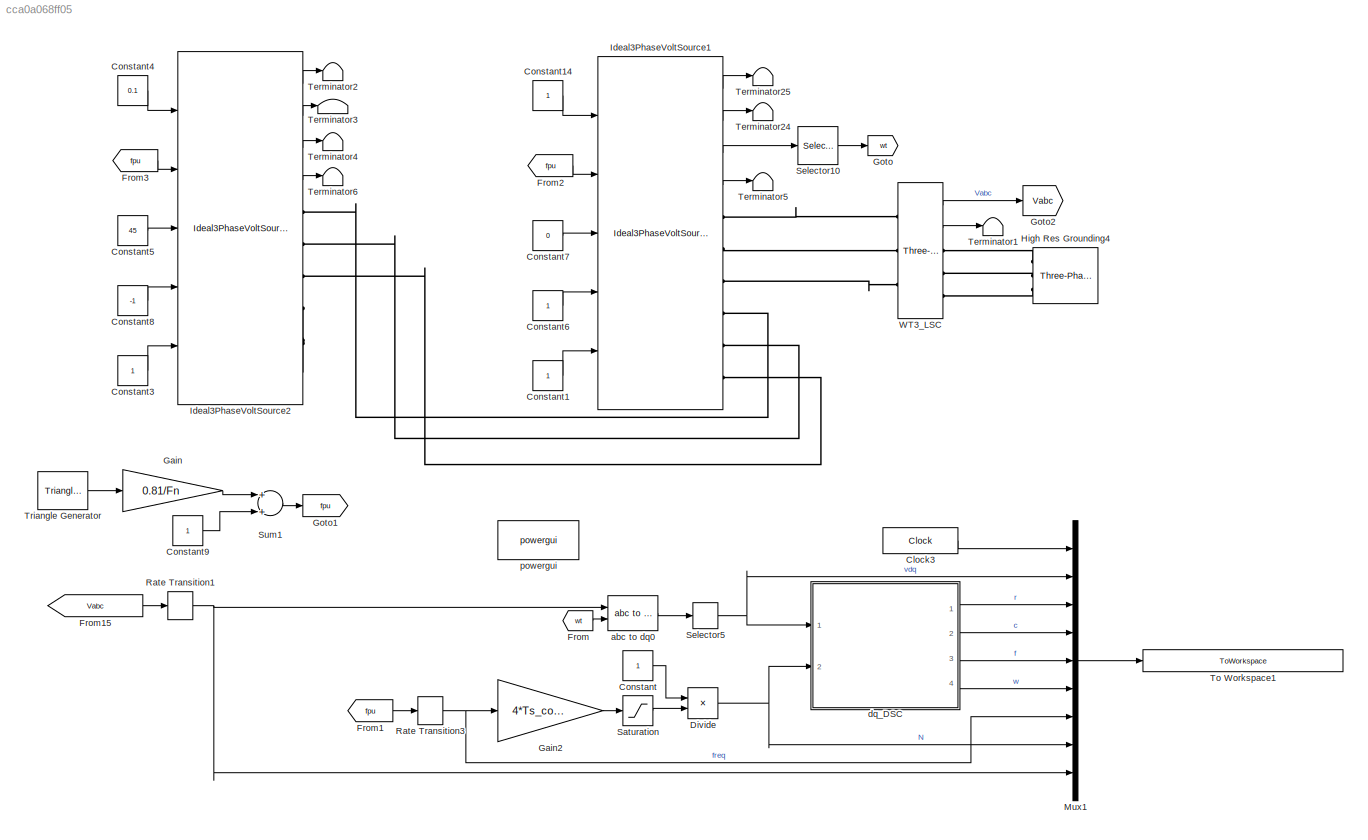
MODEL slx_cca0a068ff05
KIND model
CONFIG AbsTol = auto
CONFIG EnableMultiTasking = off
CONFIG FixedStep = Ts
CONFIG MaxStep = auto
CONFIG MinStep = auto
CONFIG RelTol = 1e-3
CONFIG SampleTimeConstraint = Unconstrained
CONFIG Solver = ode8
CONFIG SolverName = ode8
CONFIG StartTime = 0.0
CONFIG StopTime = Ttot
BLOCK [Clock] Clock3
  Decimation = 1
  DisplayTime = on
BLOCK [Constant] Constant
BLOCK [Constant] Constant1
BLOCK [Constant] Constant14
BLOCK [Constant] Constant3
BLOCK [Constant] Constant4
  Value = 0.1
BLOCK [Constant] Constant5
  Value = 45
BLOCK [Constant] Constant6
BLOCK [Constant] Constant7
  Value = 0
BLOCK [Constant] Constant8
  Value = -1
BLOCK [Constant] Constant9
BLOCK [Product] Divide
  InputSameDT = off
  Inputs = */
  OutDataTypeStr = Inherit: Inherit via internal rule
  Ports = [2, 1]
  RndMeth = Floor
  SaturateOnIntegerOverflow = off
BLOCK [From] From
  GotoTag = wt
BLOCK [From] From1
  GotoTag = fpu
BLOCK [From] From15
  GotoTag = Vabc
BLOCK [From] From2
  GotoTag = fpu
BLOCK [From] From3
  GotoTag = fpu
BLOCK [Gain] Gain
  Gain = 0.81/Fn
  OutDataTypeStr = Inherit: Inherit via internal rule
  ParamDataTypeStr = Inherit: Inherit via internal rule
  SaturateOnIntegerOverflow = off
BLOCK [Gain] Gain2
  Gain = 4*Ts_control*Fn
  OutDataTypeStr = Inherit: Inherit via internal rule
  ParamDataTypeStr = Inherit: Inherit via internal rule
  SaturateOnIntegerOverflow = off
BLOCK [Goto] Goto
  GotoTag = wt
BLOCK [Goto] Goto1
  GotoTag = fpu
BLOCK [Goto] Goto2
  GotoTag = Vabc
BLOCK [Reference] High Res Grounding4  REF=powerlib/Elements/Three-Phase
Parallel RLC Load
  AttributesFormatString = \n
  Ports = [0, 0, 0, 0, 0, 3]
  SourceBlock = powerlib/Elements/Three-Phase\nParallel RLC Load
  SourceProductBaseCode = PS
  SourceProductName = Simscape Power Systems
  SourceType = Three-Phase Parallel RLC Load
BLOCK [Reference] Ideal3PhaseVoltSource1  REF=DSCdq_Library/Ideal3PhaseVoltSource
  Ports = [5, 4, 0, 0, 0, 0, 6]
  SourceBlock = DSCdq_Library/Ideal3PhaseVoltSource
  SourceType = Three-phase ideal voltage source
BLOCK [Reference] Ideal3PhaseVoltSource2  REF=DSCdq_Library/Ideal3PhaseVoltSource
  Ports = [5, 4, 0, 0, 0, 0, 6]
  SourceBlock = DSCdq_Library/Ideal3PhaseVoltSource
  SourceType = Three-phase ideal voltage source
BLOCK [Mux] Mux1
  DisplayOption = bar
  Inputs = 9
  Ports = [9, 1]
BLOCK [RateTransition] Rate Transition1
  OutPortSampleTime = Ts_control
BLOCK [RateTransition] Rate Transition3
  InitialCondition = 1
  OutPortSampleTime = Ts_control
BLOCK [Saturate] Saturation
  InputPortMap = u0
  LowerLimit = 0.000001
  Ports = [1, 1]
  UpperLimit = inf
BLOCK [Selector] Selector10
  IndexOptions = Index vector (dialog)
  Indices = [1]
  InputPortWidth = 3
  OutputSizes = 1
  Ports = [1, 1]
BLOCK [Selector] Selector5
  IndexOptions = Index vector (dialog)
  Indices = [1 2]
  InputPortWidth = 3
  OutputSizes = 1
  Ports = [1, 1]
BLOCK [Sum] Sum1
  InputSameDT = off
  OutDataTypeStr = Inherit: Inherit via internal rule
  Ports = [2, 1]
  SaturateOnIntegerOverflow = off
BLOCK [Terminator] Terminator1
BLOCK [Terminator] Terminator2
BLOCK [Terminator] Terminator24
BLOCK [Terminator] Terminator25
BLOCK [Terminator] Terminator3
BLOCK [Terminator] Terminator4
BLOCK [Terminator] Terminator5
BLOCK [Terminator] Terminator6
BLOCK [ToWorkspace] To Workspace1
  FixptAsFi = on
  MaxDataPoints = inf
  Ports = [1]
  SampleTime = Ts_control
  Save2DSignal = 2-D array (concatenate along first dimension)
  VariableName = FreqAdaptive_Raw
BLOCK [Reference] Triangle Generator  REF=powerlib_meascontrol/Pulse & Signal
Generators/Triangle
Generator
  Ports = [0, 1]
  SourceBlock = powerlib_meascontrol/Pulse & Signal\nGenerators/Triangle\nGenerator
  SourceProductBaseCode = PS
  SourceProductName = Simscape Power Systems
  SourceType = Triangle Generator
BLOCK [Reference] WT3_LSC  REF=powerlib/Measurements/Three-Phase
V-I Measurement
  Ports = [0, 2, 0, 0, 0, 3, 3]
  SourceBlock = powerlib/Measurements/Three-Phase\nV-I Measurement
  SourceProductBaseCode = PS
  SourceProductName = Simscape Power Systems
  SourceType = Three-Phase VI Measurement
BLOCK [Reference] abc to dq0  REF=powerlib_meascontrol/Transformations/abc to dq0
  Ports = [2, 1]
  SourceBlock = powerlib_meascontrol/Transformations/abc to dq0
  SourceProductBaseCode = PS
  SourceProductName = Simscape Power Systems
  SourceType = abc to dq0 Transformation
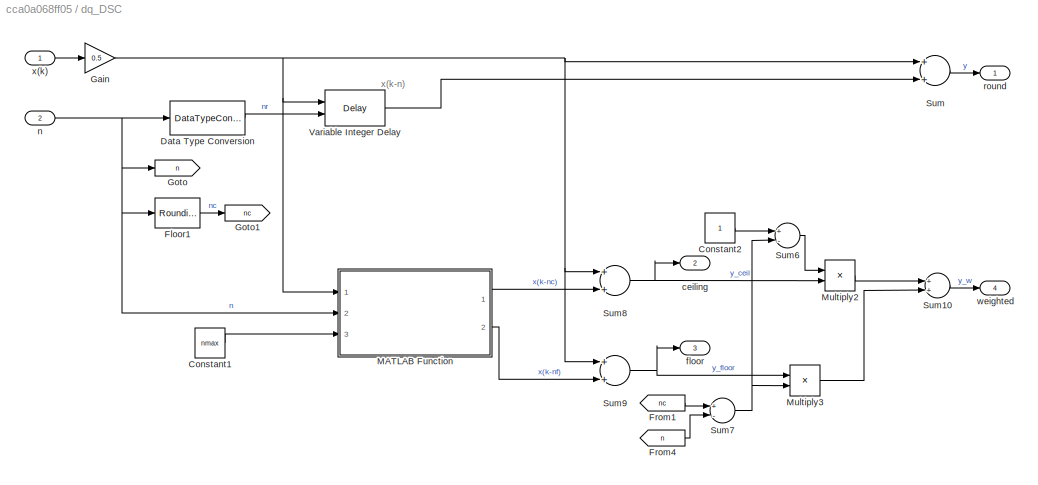
BLOCK [SubSystem] dq_DSC
  Ports = [2, 4]
  RequestExecContextInheritance = off
  SystemSampleTime = Ts
  TreatAsAtomicUnit = on
BLOCK [Constant] dq_DSC/Constant1
  Value = nmax
BLOCK [Constant] dq_DSC/Constant2
BLOCK [DataTypeConversion] dq_DSC/Data Type Conversion
  OutDataTypeStr = int16
  RndMeth = Round
BLOCK [Rounding] dq_DSC/Floor1
  Operator = ceil
BLOCK [From] dq_DSC/From1
  GotoTag = nc
BLOCK [From] dq_DSC/From4
  GotoTag = n
BLOCK [Gain] dq_DSC/Gain
  Gain = 0.5
  OutDataTypeStr = Inherit: Inherit via internal rule
  ParamDataTypeStr = Inherit: Inherit via internal rule
  SaturateOnIntegerOverflow = off
BLOCK [Goto] dq_DSC/Goto
  GotoTag = n
BLOCK [Goto] dq_DSC/Goto1
  GotoTag = nc
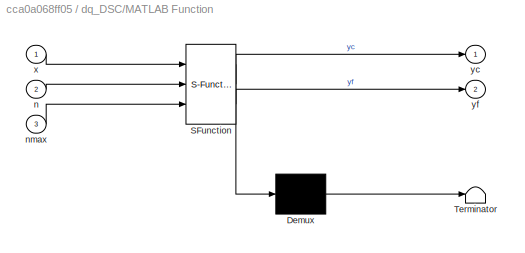
BLOCK [SubSystem] dq_DSC/MATLAB Function
  ErrorFcn = Stateflow.Translate.translate
  PermitHierarchicalResolution = ExplicitOnly
  Ports = [3, 2]
  RequestExecContextInheritance = off
  SFBlockType = MATLAB Function
  SystemSampleTime = Ts_control
  TreatAsAtomicUnit = on
BLOCK [Demux] dq_DSC/MATLAB Function/ Demux 
  Outputs = 1
  Ports = [1, 1]
BLOCK [S-Function] dq_DSC/MATLAB Function/ SFunction 
  EnableBusSupport = on
  FunctionName = sf_sfun
  PortCounts = [3 3]
  Ports = [3, 3]
  SFcnIsStateOwnerBlock = off
  SFunctionDeploymentMode = off
  Tag = Stateflow S-Function FreqAdaptive 2
BLOCK [Terminator] dq_DSC/MATLAB Function/ Terminator 
BLOCK [Inport] dq_DSC/MATLAB Function/n
  IconDisplay = Port number
  Port = 2
BLOCK [Inport] dq_DSC/MATLAB Function/nmax
  IconDisplay = Port number
  Port = 3
BLOCK [Inport] dq_DSC/MATLAB Function/x
  IconDisplay = Port number
BLOCK [Outport] dq_DSC/MATLAB Function/yc
  IconDisplay = Port number
BLOCK [Outport] dq_DSC/MATLAB Function/yf
  IconDisplay = Port number
  Port = 2
BLOCK [Product] dq_DSC/Multiply2
  InputSameDT = off
  OutDataTypeStr = Inherit: Inherit via internal rule
  Ports = [2, 1]
  RndMeth = Floor
  SaturateOnIntegerOverflow = off
BLOCK [Product] dq_DSC/Multiply3
  InputSameDT = off
  OutDataTypeStr = Inherit: Inherit via internal rule
  Ports = [2, 1]
  RndMeth = Floor
  SaturateOnIntegerOverflow = off
BLOCK [Sum] dq_DSC/Sum
  InputSameDT = off
  OutDataTypeStr = Inherit: Inherit via internal rule
  Ports = [2, 1]
  SaturateOnIntegerOverflow = off
BLOCK [Sum] dq_DSC/Sum10
  InputSameDT = off
  OutDataTypeStr = Inherit: Inherit via internal rule
  Ports = [2, 1]
  SaturateOnIntegerOverflow = off
BLOCK [Sum] dq_DSC/Sum6
  InputSameDT = off
  Inputs = +-
  OutDataTypeStr = Inherit: Inherit via internal rule
  Ports = [2, 1]
  SaturateOnIntegerOverflow = off
BLOCK [Sum] dq_DSC/Sum7
  InputSameDT = off
  Inputs = +-
  OutDataTypeStr = Inherit: Inherit via internal rule
  Ports = [2, 1]
  SaturateOnIntegerOverflow = off
BLOCK [Sum] dq_DSC/Sum8
  InputSameDT = off
  OutDataTypeStr = Inherit: Inherit via internal rule
  Ports = [2, 1]
  SaturateOnIntegerOverflow = off
BLOCK [Sum] dq_DSC/Sum9
  InputSameDT = off
  OutDataTypeStr = Inherit: Inherit via internal rule
  Ports = [2, 1]
  SaturateOnIntegerOverflow = off
BLOCK [Delay] dq_DSC/Variable Integer Delay
  DelayLength = 200
  DelayLengthSource = Input port
  DelayLengthUpperLimit = nmax
  InputPortMap = u0,p1
  Ports = [2, 1]
  SampleTime = Ts
BLOCK [Outport] dq_DSC/ceiling
  IconDisplay = Port number
  Port = 2
BLOCK [Outport] dq_DSC/floor
  IconDisplay = Port number
  Port = 3
BLOCK [Inport] dq_DSC/n
  IconDisplay = Port number
  Port = 2
BLOCK [Outport] dq_DSC/round
  IconDisplay = Port number
BLOCK [Outport] dq_DSC/weighted
  IconDisplay = Port number
  Port = 4
BLOCK [Inport] dq_DSC/x(k)
  IconDisplay = Port number
BLOCK [Reference] powergui  REF=powerlib/powergui
  Ports = []
  Priority = 1
  SourceBlock = powerlib/powergui
  SourceProductBaseCode = PS
  SourceProductName = Simscape Power Systems
  SourceType = PSB option menu block
ANNOTATION dq_DSC: x(k-n)
LINE Clock3:1 -> Mux1:1
LINE Constant14:1 -> Ideal3PhaseVoltSource1:1
LINE Constant1:1 -> Ideal3PhaseVoltSource1:5
LINE Constant3:1 -> Ideal3PhaseVoltSource2:5
LINE Constant4:1 -> Ideal3PhaseVoltSource2:1
LINE Constant5:1 -> Ideal3PhaseVoltSource2:3
LINE Constant6:1 -> Ideal3PhaseVoltSource1:4
LINE Constant7:1 -> Ideal3PhaseVoltSource1:3
LINE Constant8:1 -> Ideal3PhaseVoltSource2:4
LINE Constant9:1 -> Sum1:2
LINE Constant:1 -> Divide:1
NET Divide:1 -> Mux1:8, dq_DSC:2
LINE From15:1 -> Rate Transition1:1
LINE From1:1 -> Rate Transition3:1
LINE From2:1 -> Ideal3PhaseVoltSource1:2
LINE From3:1 -> Ideal3PhaseVoltSource2:2
LINE From:1 -> abc to dq0:2
LINE Gain2:1 -> Saturation:1
LINE Gain:1 -> Sum1:1
LINE Ideal3PhaseVoltSource1:1 -> Terminator25:1
LINE Ideal3PhaseVoltSource1:2 -> Terminator24:1
LINE Ideal3PhaseVoltSource1:3 -> Selector10:1
LINE Ideal3PhaseVoltSource1:4 -> Terminator5:1
LINE Ideal3PhaseVoltSource2:1 -> Terminator2:1
LINE Ideal3PhaseVoltSource2:2 -> Terminator3:1
LINE Ideal3PhaseVoltSource2:3 -> Terminator4:1
LINE Ideal3PhaseVoltSource2:4 -> Terminator6:1
LINE Mux1:1 -> To Workspace1:1
NET Rate Transition1:1 -> Mux1:9, abc to dq0:1
NET Rate Transition3:1 -> Gain2:1, Mux1:7
LINE Saturation:1 -> Divide:2
LINE Selector10:1 -> Goto:1
NET Selector5:1 -> Mux1:2, dq_DSC:1
LINE Sum1:1 -> Goto1:1
LINE Triangle Generator:1 -> Gain:1
LINE WT3_LSC:1 -> Goto2:1
LINE WT3_LSC:2 -> Terminator1:1
LINE abc to dq0:1 -> Selector5:1
LINE dq_DSC/Constant1:1 -> dq_DSC/MATLAB Function:3
LINE dq_DSC/Constant2:1 -> dq_DSC/Sum6:1
LINE dq_DSC/Data Type Conversion:1 -> dq_DSC/Variable Integer Delay:2
LINE dq_DSC/Floor1:1 -> dq_DSC/Goto1:1
LINE dq_DSC/From1:1 -> dq_DSC/Sum7:1
LINE dq_DSC/From4:1 -> dq_DSC/Sum7:2
NET dq_DSC/Gain:1 -> dq_DSC/MATLAB Function:1, dq_DSC/Sum8:1, dq_DSC/Sum9:1, dq_DSC/Sum:1, dq_DSC/Variable Integer Delay:1
LINE dq_DSC/MATLAB Function:1 -> dq_DSC/Sum8:2
LINE dq_DSC/MATLAB Function:2 -> dq_DSC/Sum9:2
LINE dq_DSC/Multiply2:1 -> dq_DSC/Sum10:1
LINE dq_DSC/Multiply3:1 -> dq_DSC/Sum10:2
LINE dq_DSC/Sum10:1 -> dq_DSC/weighted:1
LINE dq_DSC/Sum6:1 -> dq_DSC/Multiply2:1
NET dq_DSC/Sum7:1 -> dq_DSC/Multiply3:2, dq_DSC/Sum6:2
NET dq_DSC/Sum8:1 -> dq_DSC/Multiply2:2, dq_DSC/ceiling:1
NET dq_DSC/Sum9:1 -> dq_DSC/Multiply3:1, dq_DSC/floor:1
LINE dq_DSC/Sum:1 -> dq_DSC/round:1
LINE dq_DSC/Variable Integer Delay:1 -> dq_DSC/Sum:2
NET dq_DSC/n:1 -> dq_DSC/Data Type Conversion:1, dq_DSC/Floor1:1, dq_DSC/Goto:1, dq_DSC/MATLAB Function:2
LINE dq_DSC/x(k):1 -> dq_DSC/Gain:1
LINE dq_DSC:1 -> Mux1:3
LINE dq_DSC:2 -> Mux1:4
LINE dq_DSC:3 -> Mux1:5
LINE dq_DSC:4 -> Mux1:6
PLINE High Res Grounding4:LConn1 -- WT3_LSC:RConn1
PLINE High Res Grounding4:LConn2 -- WT3_LSC:RConn2
PLINE High Res Grounding4:LConn3 -- WT3_LSC:RConn3
PLINE Ideal3PhaseVoltSource1:RConn1 -- WT3_LSC:LConn1
PLINE Ideal3PhaseVoltSource1:RConn2 -- WT3_LSC:LConn2
PLINE Ideal3PhaseVoltSource1:RConn3 -- WT3_LSC:LConn3
PLINE Ideal3PhaseVoltSource1:RConn4 -- Ideal3PhaseVoltSource2:RConn1
PLINE Ideal3PhaseVoltSource1:RConn5 -- Ideal3PhaseVoltSource2:RConn2
PLINE Ideal3PhaseVoltSource1:RConn6 -- Ideal3PhaseVoltSource2:RConn3
PNET net1: Ideal3PhaseVoltSource2:RConn4 -- Ideal3PhaseVoltSource2:RConn5 -- Ideal3PhaseVoltSource2:RConn6
note: NET lines group one-source signal fan-out (src -> all destinations, sorted); 1:1 wires keep LINE; PNET lines group multi-terminal physical nets as a canonical sorted terminal list (undirected conserving connections); 2-terminal nets keep the pairwise PLINE form
CHART dq_DSC/MATLAB Function states=1 transitions=1
  STATE_LABEL 'eML_blk_kernel()'
  STATE_LABEL 'SCRIPT:\nfunction [yc,    yf]  = CircBuff_Delay_CeilFloor(x, n, nmax)\n%% %%%%%%%%%%%%%%%%%%%%%%%%%%%%%%%%%%%%%%%%%%%%%%%%%%%%%%%%%%%%%%%%%%%%%%%%\n% Circular Buffer \n% By: Mota\n% Revision history:\n%       2021-07-16: first release\n%\n%%Interface  \n%   Inputs\n%       x : must be a vector pf two values\n%       n : delay in samples (float, ideal delay is time was continuous)\n%       nmax : max size of c...<+2783ch>'
